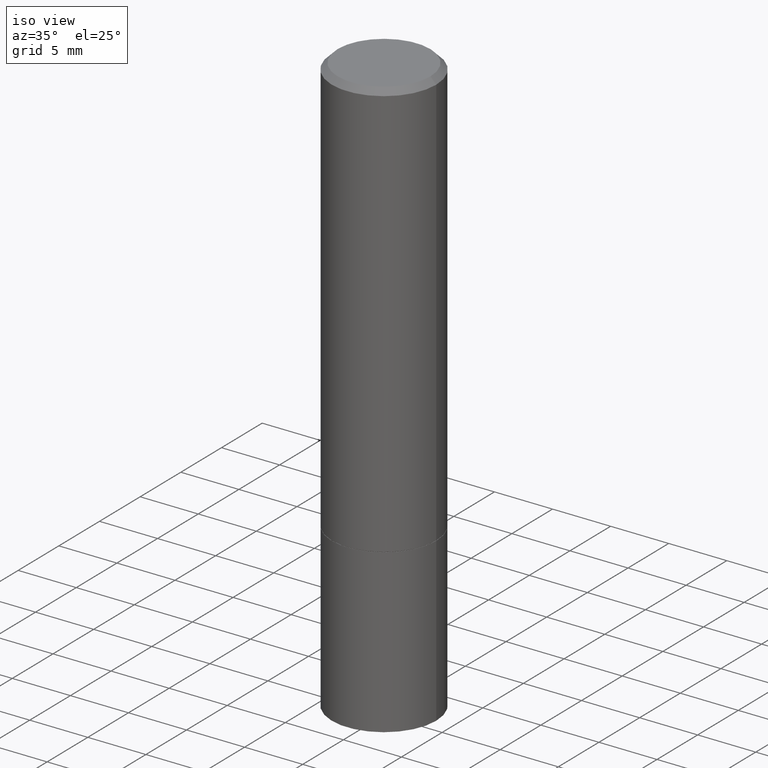
[diagram: clean part render]
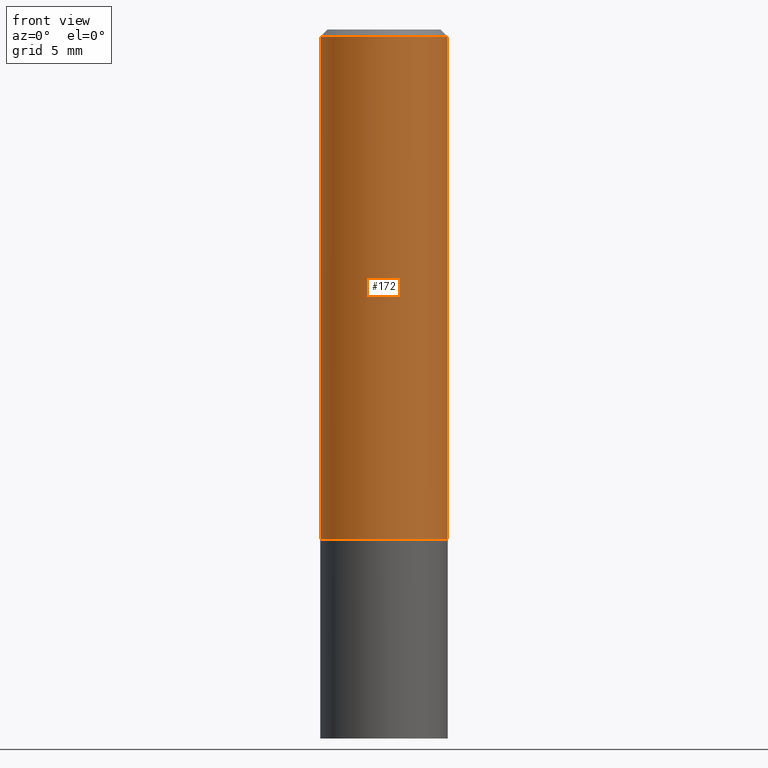
[diagram: tour spotlight — one face highlighted and labeled with its STEP entity id]
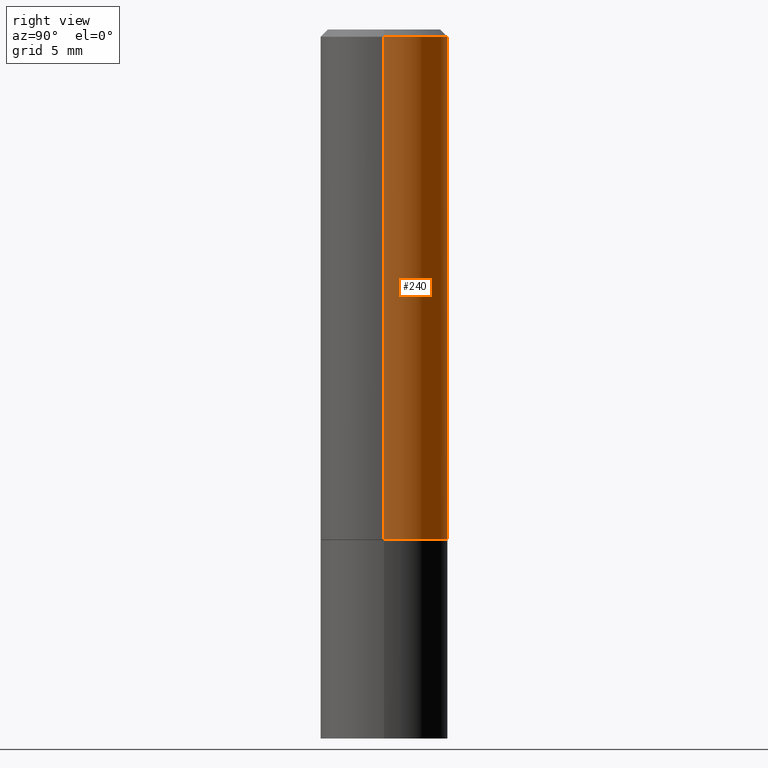
[diagram: tour spotlight — one face highlighted and labeled with its STEP entity id]
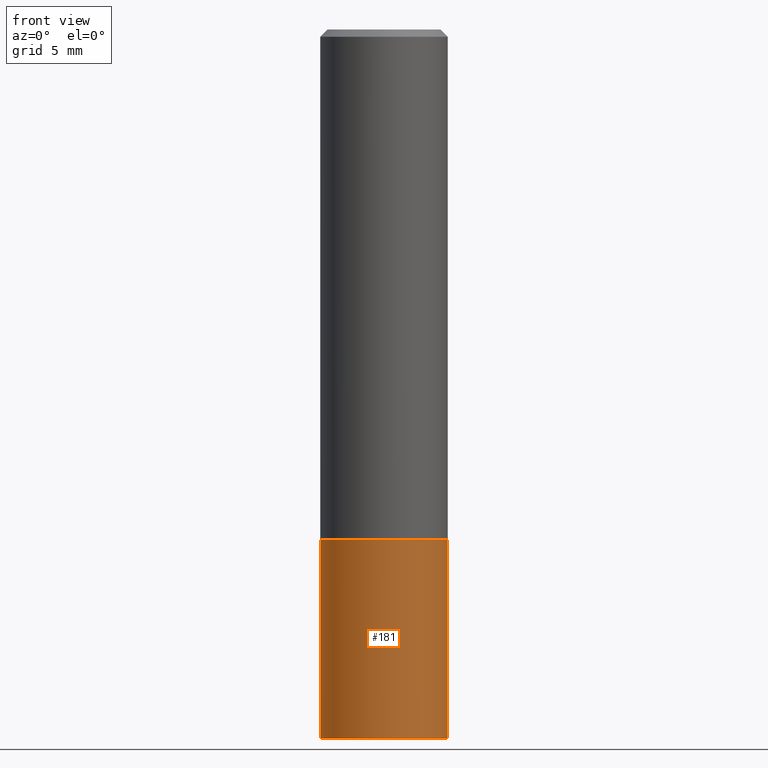
[diagram: tour spotlight — one face highlighted and labeled with its STEP entity id]
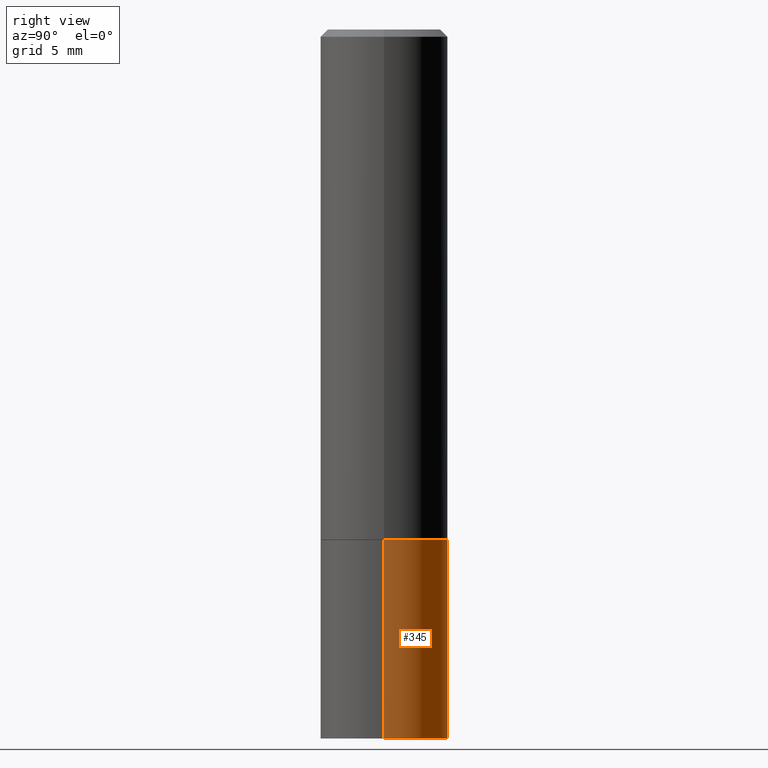
[diagram: tour spotlight — one face highlighted and labeled with its STEP entity id]
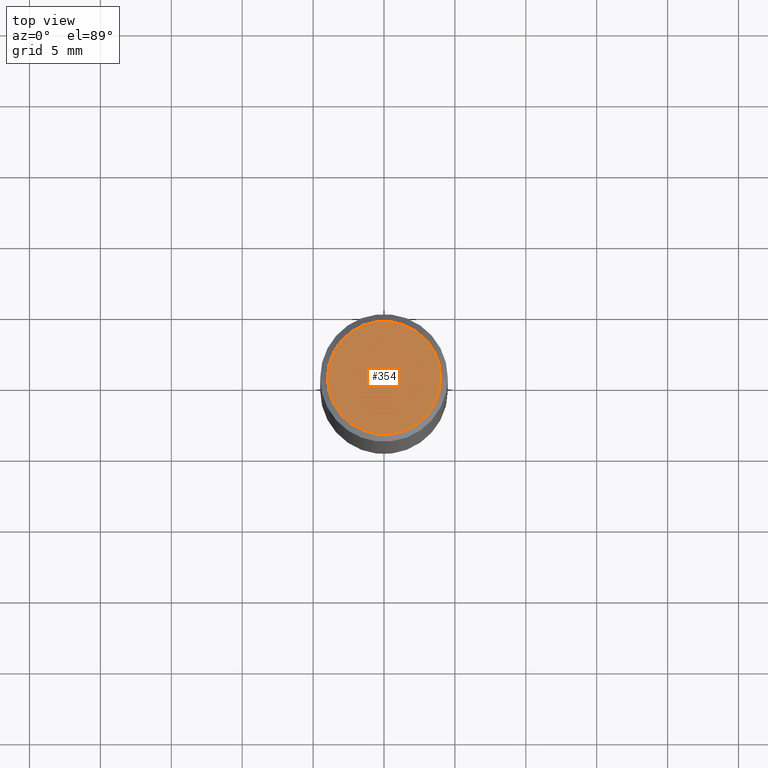
[diagram: tour spotlight — one face highlighted and labeled with its STEP entity id]
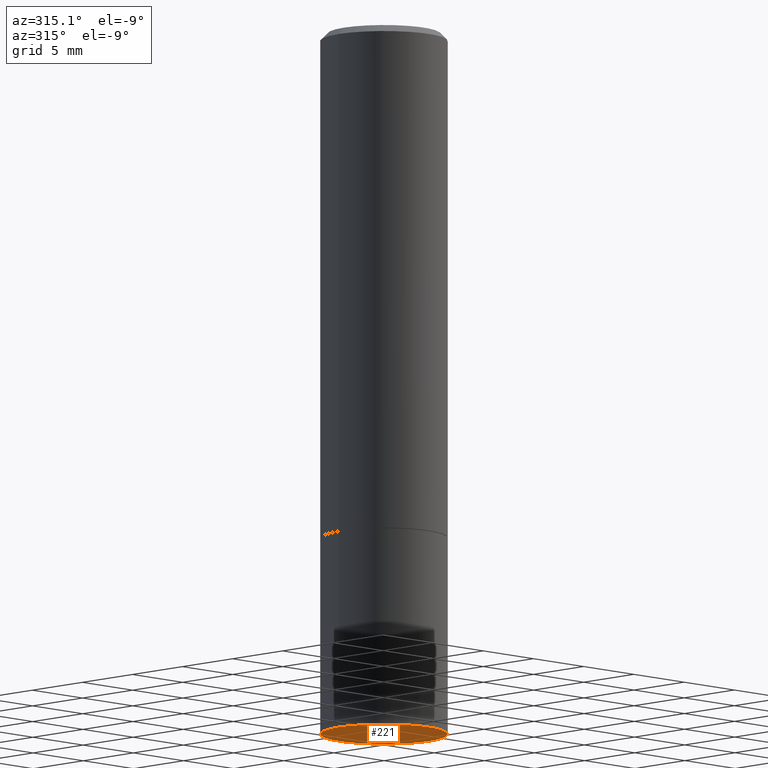
[diagram: tour spotlight — one face highlighted and labeled with its STEP entity id]
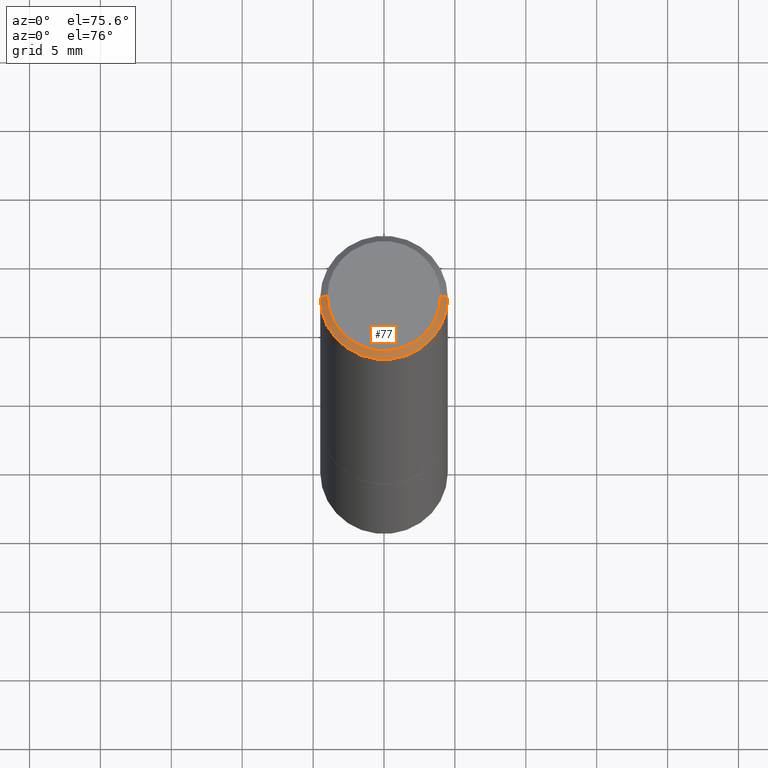
[diagram: tour spotlight — one face highlighted and labeled with its STEP entity id]
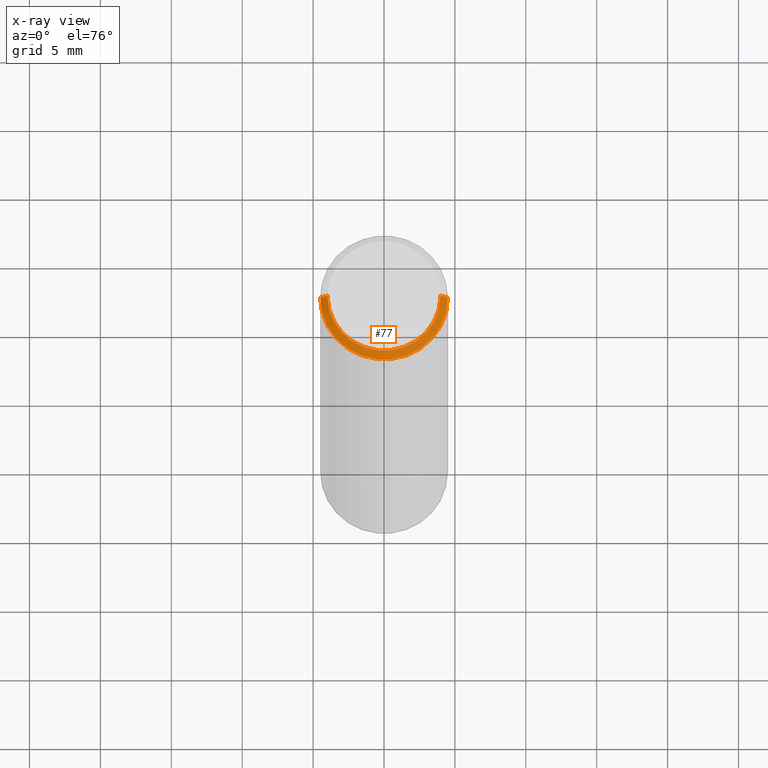
[diagram: x-ray of the same camera — body ghosted, this tour face saturated]
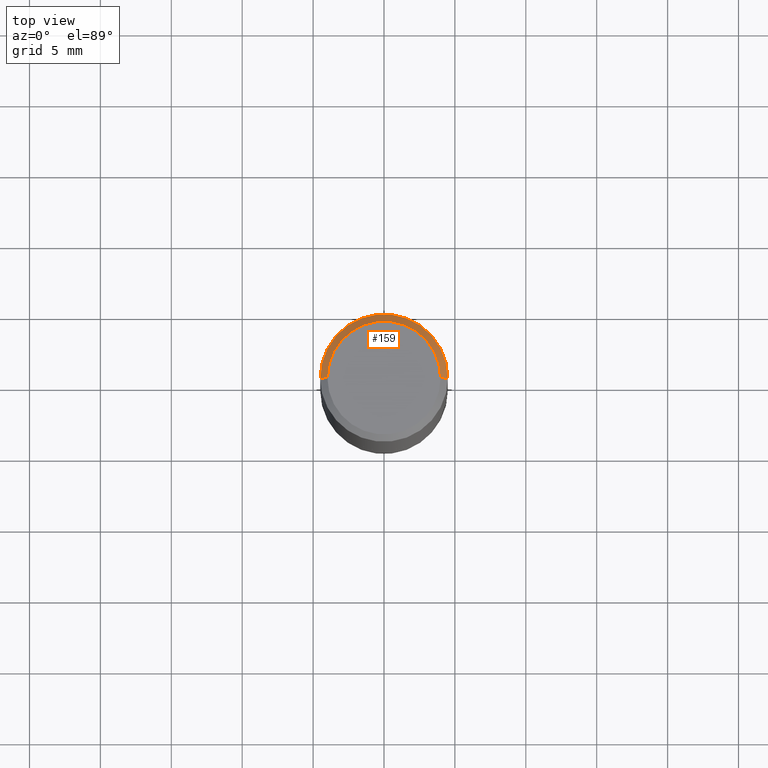
[diagram: tour spotlight — one face highlighted and labeled with its STEP entity id]
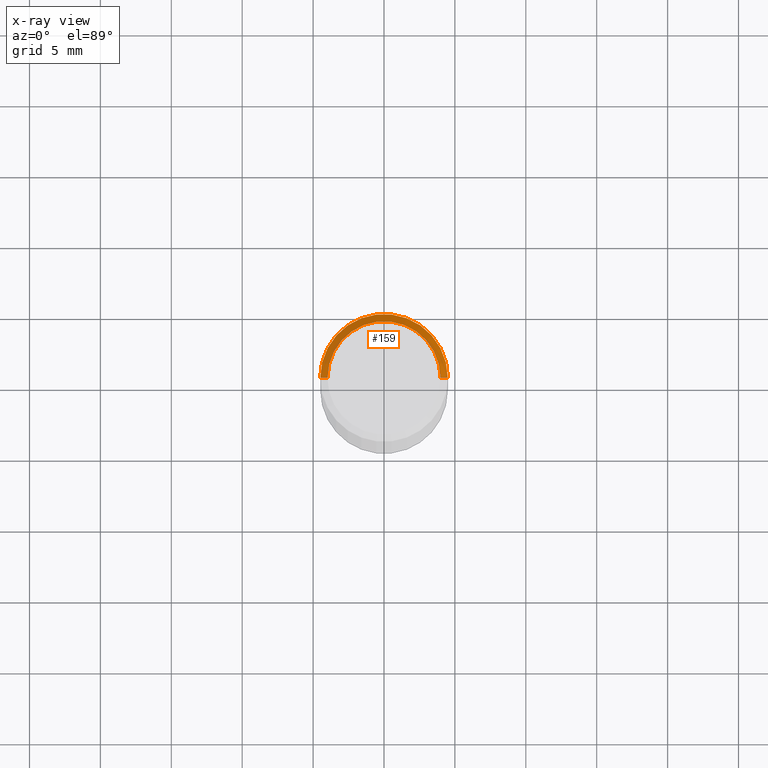
[diagram: x-ray of the same camera — body ghosted, this tour face saturated]
A machine part: a face-by-face anatomy tour. The part has 12 B-rep faces; the first image is the clean iso view, then the 8 largest visible faces are spotlighted one at a time (largest first), each with its STEP entity span.

Face 1 — front view, entity #172. In plain terms, the highlighted cylindrical surface (partial cylindrical patch) has radius 4.4996 mm, axis along (-0, 0, 1).
Definition (entity closure, byte-faithful):
#2 = AXIS2_PLACEMENT_3D ( 'NONE', #68, #262, #7 ) ;
#7 = DIRECTION ( 'NONE',  ( 1.000000000000000000, -6.982962677686266711E-15, 0.000000000000000000 ) ) ;
#11 = EDGE_CURVE ( 'NONE', #143, #229, #151, .T. ) ;
#13 = CARTESIAN_POINT ( 'NONE',  ( -0.1771499999999999186, 1.258726456399016901E-15, -8.713893512386561121E-30 ) ) ;
#15 = DIRECTION ( 'NONE',  ( -2.445468806185136597E-29, 3.491481338843145583E-15, 1.000000000000000000 ) ) ;
#23 = LINE ( 'NONE', #165, #152 ) ;
#33 = ORIENTED_EDGE ( 'NONE', *, *, #11, .F. ) ;
#46 = CARTESIAN_POINT ( 'NONE',  ( 3.463517470200008716E-29, -4.944985020203546646E-15, -1.416299999999999892 ) ) ;
#57 = VERTEX_POINT ( 'NONE', #292 ) ;
#68 = CARTESIAN_POINT ( 'NONE',  ( 4.890937612370283668E-31, -6.982962677686305168E-17, -0.02000000000000004205 ) ) ;
#86 = DIRECTION ( 'NONE',  ( -2.445468806185136597E-29, 3.491481338843145583E-15, 1.000000000000000000 ) ) ;
#98 = ORIENTED_EDGE ( 'NONE', *, *, #287, .F. ) ;
#114 = CYLINDRICAL_SURFACE ( 'NONE', #289, 0.1771499999999999186 ) ;
#132 = DIRECTION ( 'NONE',  ( -2.445468806185136877E-29, 3.491481338843145188E-15, 1.000000000000000000 ) ) ;
#143 = VERTEX_POINT ( 'NONE', #328 ) ;
#151 = CIRCLE ( 'NONE', #2, 0.1771499999999998354 ) ;
#152 = VECTOR ( 'NONE', #364, 39.37007874015748143 ) ;
#162 = DIRECTION ( 'NONE',  ( 1.000000000000000000, -6.982962677686266711E-15, 4.876176775795935232E-29 ) ) ;
#165 = CARTESIAN_POINT ( 'NONE',  ( 0.1771499999999999186, -1.237031838352121605E-15, 8.638147158322495756E-30 ) ) ;
#172 = ADVANCED_FACE ( 'NONE', ( #361 ), #114, .T. ) ;
#179 = ORIENTED_EDGE ( 'NONE', *, *, #305, .T. ) ;
#184 = LINE ( 'NONE', #13, #349 ) ;
#188 = AXIS2_PLACEMENT_3D ( 'NONE', #46, #15, #264 ) ;
#195 = CIRCLE ( 'NONE', #188, 0.1771500000000000019 ) ;
#218 = CARTESIAN_POINT ( 'NONE',  ( 0.000000000000000000, 0.000000000000000000, 0.000000000000000000 ) ) ;
#229 = VERTEX_POINT ( 'NONE', #272 ) ;
#231 = EDGE_CURVE ( 'NONE', #57, #229, #23, .T. ) ;
#251 = ORIENTED_EDGE ( 'NONE', *, *, #231, .T. ) ;
#261 = CARTESIAN_POINT ( 'NONE',  ( -0.1771500000000000019, -1.248680867091185705E-15, -1.416299999999999892 ) ) ;
#262 = DIRECTION ( 'NONE',  ( -2.445468806185136597E-29, 3.491481338843145583E-15, 1.000000000000000000 ) ) ;
#264 = DIRECTION ( 'NONE',  ( 1.000000000000000000, -6.982962677686266711E-15, 0.000000000000000000 ) ) ;
#272 = CARTESIAN_POINT ( 'NONE',  ( 0.1771499999999998354, -1.285166847082088818E-15, -0.02000000000000004205 ) ) ;
#283 = VERTEX_POINT ( 'NONE', #261 ) ;
#285 = EDGE_LOOP ( 'NONE', ( #98, #179, #251, #33 ) ) ;
#287 = EDGE_CURVE ( 'NONE', #283, #143, #184, .T. ) ;
#289 = AXIS2_PLACEMENT_3D ( 'NONE', #218, #86, #162 ) ;
#292 = CARTESIAN_POINT ( 'NONE',  ( 0.1771500000000000019, -6.182016858555669040E-15, -1.416299999999999892 ) ) ;
#305 = EDGE_CURVE ( 'NONE', #283, #57, #195, .T. ) ;
#328 = CARTESIAN_POINT ( 'NONE',  ( -0.1771499999999998354, 1.167202211575257912E-15, -0.02000000000000004205 ) ) ;
#349 = VECTOR ( 'NONE', #132, 39.37007874015748143 ) ;
#361 = FACE_OUTER_BOUND ( 'NONE', #285, .T. ) ;
#364 = DIRECTION ( 'NONE',  ( -2.445468806185136877E-29, 3.491481338843145188E-15, 1.000000000000000000 ) ) ;

Face 2 — right view, entity #240. In plain terms, the highlighted cylindrical surface (partial cylindrical patch) has radius 4.4996 mm, axis along (-0, 0, 1).
Definition (entity closure, byte-faithful):
#4 = ORIENTED_EDGE ( 'NONE', *, *, #314, .F. ) ;
#13 = CARTESIAN_POINT ( 'NONE',  ( -0.1771499999999999186, 1.258726456399016901E-15, -8.713893512386561121E-30 ) ) ;
#23 = LINE ( 'NONE', #165, #152 ) ;
#30 = CIRCLE ( 'NONE', #136, 0.1771499999999998354 ) ;
#38 = AXIS2_PLACEMENT_3D ( 'NONE', #237, #357, #232 ) ;
#53 = ORIENTED_EDGE ( 'NONE', *, *, #231, .F. ) ;
#57 = VERTEX_POINT ( 'NONE', #292 ) ;
#89 = CARTESIAN_POINT ( 'NONE',  ( 0.000000000000000000, 0.000000000000000000, 0.000000000000000000 ) ) ;
#93 = FACE_OUTER_BOUND ( 'NONE', #310, .T. ) ;
#130 = EDGE_CURVE ( 'NONE', #57, #283, #215, .T. ) ;
#132 = DIRECTION ( 'NONE',  ( -2.445468806185136877E-29, 3.491481338843145188E-15, 1.000000000000000000 ) ) ;
#136 = AXIS2_PLACEMENT_3D ( 'NONE', #233, #213, #322 ) ;
#143 = VERTEX_POINT ( 'NONE', #328 ) ;
#152 = VECTOR ( 'NONE', #364, 39.37007874015748143 ) ;
#165 = CARTESIAN_POINT ( 'NONE',  ( 0.1771499999999999186, -1.237031838352121605E-15, 8.638147158322495756E-30 ) ) ;
#184 = LINE ( 'NONE', #13, #349 ) ;
#193 = ORIENTED_EDGE ( 'NONE', *, *, #287, .T. ) ;
#199 = CYLINDRICAL_SURFACE ( 'NONE', #300, 0.1771499999999999186 ) ;
#213 = DIRECTION ( 'NONE',  ( -2.445468806185136597E-29, 3.491481338843145583E-15, 1.000000000000000000 ) ) ;
#215 = CIRCLE ( 'NONE', #38, 0.1771500000000000019 ) ;
#229 = VERTEX_POINT ( 'NONE', #272 ) ;
#231 = EDGE_CURVE ( 'NONE', #57, #229, #23, .T. ) ;
#232 = DIRECTION ( 'NONE',  ( 1.000000000000000000, -6.982962677686266711E-15, 0.000000000000000000 ) ) ;
#233 = CARTESIAN_POINT ( 'NONE',  ( 4.890937612370283668E-31, -6.982962677686305168E-17, -0.02000000000000004205 ) ) ;
#237 = CARTESIAN_POINT ( 'NONE',  ( 3.463517470200008716E-29, -4.944985020203546646E-15, -1.416299999999999892 ) ) ;
#240 = ADVANCED_FACE ( 'NONE', ( #93 ), #199, .T. ) ;
#249 = ORIENTED_EDGE ( 'NONE', *, *, #130, .T. ) ;
#261 = CARTESIAN_POINT ( 'NONE',  ( -0.1771500000000000019, -1.248680867091185705E-15, -1.416299999999999892 ) ) ;
#272 = CARTESIAN_POINT ( 'NONE',  ( 0.1771499999999998354, -1.285166847082088818E-15, -0.02000000000000004205 ) ) ;
#277 = DIRECTION ( 'NONE',  ( 1.000000000000000000, -6.982962677686266711E-15, 4.876176775795935232E-29 ) ) ;
#283 = VERTEX_POINT ( 'NONE', #261 ) ;
#287 = EDGE_CURVE ( 'NONE', #283, #143, #184, .T. ) ;
#292 = CARTESIAN_POINT ( 'NONE',  ( 0.1771500000000000019, -6.182016858555669040E-15, -1.416299999999999892 ) ) ;
#300 = AXIS2_PLACEMENT_3D ( 'NONE', #89, #333, #277 ) ;
#310 = EDGE_LOOP ( 'NONE', ( #249, #193, #4, #53 ) ) ;
#314 = EDGE_CURVE ( 'NONE', #229, #143, #30, .T. ) ;
#322 = DIRECTION ( 'NONE',  ( 1.000000000000000000, -6.982962677686266711E-15, 0.000000000000000000 ) ) ;
#328 = CARTESIAN_POINT ( 'NONE',  ( -0.1771499999999998354, 1.167202211575257912E-15, -0.02000000000000004205 ) ) ;
#333 = DIRECTION ( 'NONE',  ( -2.445468806185136597E-29, 3.491481338843145583E-15, 1.000000000000000000 ) ) ;
#349 = VECTOR ( 'NONE', #132, 39.37007874015748143 ) ;
#357 = DIRECTION ( 'NONE',  ( -2.445468806185136597E-29, 3.491481338843145583E-15, 1.000000000000000000 ) ) ;
#364 = DIRECTION ( 'NONE',  ( -2.445468806185136877E-29, 3.491481338843145188E-15, 1.000000000000000000 ) ) ;

Face 3 — front view, entity #181. In plain terms, the highlighted cylindrical surface (partial cylindrical patch) has radius 4.4996 mm, axis along (-0, 0, 1).
Definition (entity closure, byte-faithful):
#14 = FACE_OUTER_BOUND ( 'NONE', #281, .T. ) ;
#19 = AXIS2_PLACEMENT_3D ( 'NONE', #97, #242, #117 ) ;
#24 = EDGE_CURVE ( 'NONE', #295, #146, #95, .T. ) ;
#27 = DIRECTION ( 'NONE',  ( 1.000000000000000000, -6.982962677686266711E-15, 0.000000000000000000 ) ) ;
#35 = ORIENTED_EDGE ( 'NONE', *, *, #24, .T. ) ;
#50 = DIRECTION ( 'NONE',  ( -2.445468806185136877E-29, 3.491481338843145188E-15, 1.000000000000000000 ) ) ;
#64 = ORIENTED_EDGE ( 'NONE', *, *, #318, .F. ) ;
#78 = DIRECTION ( 'NONE',  ( -2.445468806185136597E-29, 3.491481338843145583E-15, 1.000000000000000000 ) ) ;
#84 = VERTEX_POINT ( 'NONE', #239 ) ;
#95 = LINE ( 'NONE', #286, #167 ) ;
#97 = CARTESIAN_POINT ( 'NONE',  ( 3.465962939006193759E-29, -4.948476501542390442E-15, -1.417300000000000004 ) ) ;
#106 = CARTESIAN_POINT ( 'NONE',  ( 0.1771500000000000019, -6.185508339894512836E-15, -1.417300000000000004 ) ) ;
#110 = LINE ( 'NONE', #294, #356 ) ;
#117 = DIRECTION ( 'NONE',  ( 1.000000000000000000, -6.982962677686266711E-15, 0.000000000000000000 ) ) ;
#125 = DIRECTION ( 'NONE',  ( -2.445468806185136877E-29, 3.491481338843145188E-15, 1.000000000000000000 ) ) ;
#133 = CYLINDRICAL_SURFACE ( 'NONE', #248, 0.1771500000000000019 ) ;
#145 = CARTESIAN_POINT ( 'NONE',  ( -0.1771500000000000019, -4.652002302128544174E-15, -1.968500000000000139 ) ) ;
#146 = VERTEX_POINT ( 'NONE', #106 ) ;
#167 = VECTOR ( 'NONE', #125, 39.37007874015748143 ) ;
#175 = ORIENTED_EDGE ( 'NONE', *, *, #247, .T. ) ;
#181 = ADVANCED_FACE ( 'NONE', ( #14 ), #133, .T. ) ;
#197 = CIRCLE ( 'NONE', #19, 0.1771500000000000019 ) ;
#239 = CARTESIAN_POINT ( 'NONE',  ( -0.1771500000000000019, -4.652002302128544174E-15, -1.417300000000000004 ) ) ;
#242 = DIRECTION ( 'NONE',  ( -2.445468806185136597E-29, 3.491481338843145583E-15, 1.000000000000000000 ) ) ;
#247 = EDGE_CURVE ( 'NONE', #334, #295, #255, .T. ) ;
#248 = AXIS2_PLACEMENT_3D ( 'NONE', #320, #78, #293 ) ;
#255 = CIRCLE ( 'NONE', #266, 0.1771500000000000019 ) ;
#266 = AXIS2_PLACEMENT_3D ( 'NONE', #303, #280, #27 ) ;
#280 = DIRECTION ( 'NONE',  ( -2.445468806185136597E-29, 3.491481338843145583E-15, 1.000000000000000000 ) ) ;
#281 = EDGE_LOOP ( 'NONE', ( #64, #175, #35, #339 ) ) ;
#286 = CARTESIAN_POINT ( 'NONE',  ( 0.1771500000000000019, -1.237031838352122197E-15, 8.638147158322499960E-30 ) ) ;
#293 = DIRECTION ( 'NONE',  ( 1.000000000000000000, -6.982962677686266711E-15, 4.876176775795935793E-29 ) ) ;
#294 = CARTESIAN_POINT ( 'NONE',  ( -0.1771500000000000019, 1.258726456399017493E-15, -8.713893512386565325E-30 ) ) ;
#295 = VERTEX_POINT ( 'NONE', #352 ) ;
#303 = CARTESIAN_POINT ( 'NONE',  ( 4.813905344975441835E-29, -6.872981015512731707E-15, -1.968500000000000139 ) ) ;
#318 = EDGE_CURVE ( 'NONE', #334, #84, #110, .T. ) ;
#320 = CARTESIAN_POINT ( 'NONE',  ( 0.000000000000000000, 0.000000000000000000, 0.000000000000000000 ) ) ;
#332 = EDGE_CURVE ( 'NONE', #84, #146, #197, .T. ) ;
#334 = VERTEX_POINT ( 'NONE', #145 ) ;
#339 = ORIENTED_EDGE ( 'NONE', *, *, #332, .F. ) ;
#352 = CARTESIAN_POINT ( 'NONE',  ( 0.1771500000000000019, -8.110012853864854101E-15, -1.968500000000000139 ) ) ;
#356 = VECTOR ( 'NONE', #50, 39.37007874015748143 ) ;

Face 4 — right view, entity #345. In plain terms, the highlighted cylindrical surface (partial cylindrical patch) has radius 4.4996 mm, axis along (-0, 0, 1).
Definition (entity closure, byte-faithful):
#6 = ORIENTED_EDGE ( 'NONE', *, *, #24, .F. ) ;
#24 = EDGE_CURVE ( 'NONE', #295, #146, #95, .T. ) ;
#26 = CARTESIAN_POINT ( 'NONE',  ( 0.000000000000000000, 0.000000000000000000, 0.000000000000000000 ) ) ;
#40 = EDGE_CURVE ( 'NONE', #295, #334, #275, .T. ) ;
#43 = EDGE_CURVE ( 'NONE', #146, #84, #52, .T. ) ;
#50 = DIRECTION ( 'NONE',  ( -2.445468806185136877E-29, 3.491481338843145188E-15, 1.000000000000000000 ) ) ;
#52 = CIRCLE ( 'NONE', #268, 0.1771500000000000019 ) ;
#71 = DIRECTION ( 'NONE',  ( 1.000000000000000000, -6.982962677686266711E-15, 0.000000000000000000 ) ) ;
#84 = VERTEX_POINT ( 'NONE', #239 ) ;
#94 = AXIS2_PLACEMENT_3D ( 'NONE', #346, #127, #348 ) ;
#95 = LINE ( 'NONE', #286, #167 ) ;
#103 = CARTESIAN_POINT ( 'NONE',  ( 3.465962939006193759E-29, -4.948476501542390442E-15, -1.417300000000000004 ) ) ;
#106 = CARTESIAN_POINT ( 'NONE',  ( 0.1771500000000000019, -6.185508339894512836E-15, -1.417300000000000004 ) ) ;
#110 = LINE ( 'NONE', #294, #356 ) ;
#120 = DIRECTION ( 'NONE',  ( -2.445468806185136597E-29, 3.491481338843145583E-15, 1.000000000000000000 ) ) ;
#122 = ORIENTED_EDGE ( 'NONE', *, *, #40, .T. ) ;
#125 = DIRECTION ( 'NONE',  ( -2.445468806185136877E-29, 3.491481338843145188E-15, 1.000000000000000000 ) ) ;
#127 = DIRECTION ( 'NONE',  ( -2.445468806185136597E-29, 3.491481338843145583E-15, 1.000000000000000000 ) ) ;
#145 = CARTESIAN_POINT ( 'NONE',  ( -0.1771500000000000019, -4.652002302128544174E-15, -1.968500000000000139 ) ) ;
#146 = VERTEX_POINT ( 'NONE', #106 ) ;
#163 = ORIENTED_EDGE ( 'NONE', *, *, #43, .F. ) ;
#167 = VECTOR ( 'NONE', #125, 39.37007874015748143 ) ;
#169 = DIRECTION ( 'NONE',  ( 1.000000000000000000, -6.982962677686266711E-15, 4.876176775795935793E-29 ) ) ;
#205 = ORIENTED_EDGE ( 'NONE', *, *, #318, .T. ) ;
#208 = DIRECTION ( 'NONE',  ( -2.445468806185136597E-29, 3.491481338843145583E-15, 1.000000000000000000 ) ) ;
#223 = EDGE_LOOP ( 'NONE', ( #122, #205, #163, #6 ) ) ;
#239 = CARTESIAN_POINT ( 'NONE',  ( -0.1771500000000000019, -4.652002302128544174E-15, -1.417300000000000004 ) ) ;
#268 = AXIS2_PLACEMENT_3D ( 'NONE', #103, #208, #71 ) ;
#275 = CIRCLE ( 'NONE', #94, 0.1771500000000000019 ) ;
#286 = CARTESIAN_POINT ( 'NONE',  ( 0.1771500000000000019, -1.237031838352122197E-15, 8.638147158322499960E-30 ) ) ;
#294 = CARTESIAN_POINT ( 'NONE',  ( -0.1771500000000000019, 1.258726456399017493E-15, -8.713893512386565325E-30 ) ) ;
#295 = VERTEX_POINT ( 'NONE', #352 ) ;
#297 = CYLINDRICAL_SURFACE ( 'NONE', #317, 0.1771500000000000019 ) ;
#317 = AXIS2_PLACEMENT_3D ( 'NONE', #26, #120, #169 ) ;
#318 = EDGE_CURVE ( 'NONE', #334, #84, #110, .T. ) ;
#334 = VERTEX_POINT ( 'NONE', #145 ) ;
#345 = ADVANCED_FACE ( 'NONE', ( #363 ), #297, .T. ) ;
#346 = CARTESIAN_POINT ( 'NONE',  ( 4.813905344975441835E-29, -6.872981015512731707E-15, -1.968500000000000139 ) ) ;
#348 = DIRECTION ( 'NONE',  ( 1.000000000000000000, -6.982962677686266711E-15, 0.000000000000000000 ) ) ;
#352 = CARTESIAN_POINT ( 'NONE',  ( 0.1771500000000000019, -8.110012853864854101E-15, -1.968500000000000139 ) ) ;
#356 = VECTOR ( 'NONE', #50, 39.37007874015748143 ) ;
#363 = FACE_OUTER_BOUND ( 'NONE', #223, .T. ) ;

Face 5 — top view, entity #354. In plain terms, the highlighted planar face has unit normal (0, -0, -1).
Definition (entity closure, byte-faithful):
#1 = DIRECTION ( 'NONE',  ( -1.000000000000000000, 6.982962677686265922E-15, -4.876176775795935793E-29 ) ) ;
#28 = VERTEX_POINT ( 'NONE', #228 ) ;
#31 = ORIENTED_EDGE ( 'NONE', *, *, #209, .T. ) ;
#55 = FACE_OUTER_BOUND ( 'NONE', #160, .T. ) ;
#72 = EDGE_CURVE ( 'NONE', #256, #28, #126, .T. ) ;
#88 = PLANE ( 'NONE',  #222 ) ;
#107 = DIRECTION ( 'NONE',  ( -2.445468806185136597E-29, 3.491481338843145583E-15, 1.000000000000000000 ) ) ;
#121 = CIRCLE ( 'NONE', #235, 0.1571499999999998454 ) ;
#126 = CIRCLE ( 'NONE', #290, 0.1571499999999998454 ) ;
#134 = CARTESIAN_POINT ( 'NONE',  ( 0.000000000000000000, 0.000000000000000000, 0.000000000000000000 ) ) ;
#138 = DIRECTION ( 'NONE',  ( 2.438088387897960049E-29, -3.491481338843145188E-15, -1.000000000000000000 ) ) ;
#155 = ORIENTED_EDGE ( 'NONE', *, *, #72, .T. ) ;
#160 = EDGE_LOOP ( 'NONE', ( #155, #31 ) ) ;
#182 = DIRECTION ( 'NONE',  ( 1.000000000000000000, -6.982962677686267499E-15, 4.876176775795935793E-29 ) ) ;
#209 = EDGE_CURVE ( 'NONE', #28, #256, #121, .T. ) ;
#222 = AXIS2_PLACEMENT_3D ( 'NONE', #271, #138, #1 ) ;
#228 = CARTESIAN_POINT ( 'NONE',  ( 0.1571499999999998454, -1.181647053715941838E-15, 7.968752866068134566E-30 ) ) ;
#234 = DIRECTION ( 'NONE',  ( -2.445468806185136597E-29, 3.491481338843145583E-15, 1.000000000000000000 ) ) ;
#235 = AXIS2_PLACEMENT_3D ( 'NONE', #134, #234, #355 ) ;
#246 = CARTESIAN_POINT ( 'NONE',  ( -0.1571499999999998454, 1.132287398186826855E-15, -7.796414549896502556E-30 ) ) ;
#256 = VERTEX_POINT ( 'NONE', #246 ) ;
#263 = CARTESIAN_POINT ( 'NONE',  ( 0.000000000000000000, 0.000000000000000000, 0.000000000000000000 ) ) ;
#271 = CARTESIAN_POINT ( 'NONE',  ( 1.097372584798395600E-15, 0.1571499999999998454, -5.486862923991998709E-16 ) ) ;
#290 = AXIS2_PLACEMENT_3D ( 'NONE', #263, #107, #182 ) ;
#354 = ADVANCED_FACE ( 'NONE', ( #55 ), #88, .F. ) ;
#355 = DIRECTION ( 'NONE',  ( 1.000000000000000000, -6.982962677686267499E-15, 4.876176775795935793E-29 ) ) ;

Face 6 — auxiliary view, entity #221. In plain terms, the highlighted planar face has unit normal (0, -0, -1).
Definition (entity closure, byte-faithful):
#8 = ORIENTED_EDGE ( 'NONE', *, *, #40, .F. ) ;
#27 = DIRECTION ( 'NONE',  ( 1.000000000000000000, -6.982962677686266711E-15, 0.000000000000000000 ) ) ;
#40 = EDGE_CURVE ( 'NONE', #295, #334, #275, .T. ) ;
#81 = FACE_OUTER_BOUND ( 'NONE', #177, .T. ) ;
#94 = AXIS2_PLACEMENT_3D ( 'NONE', #346, #127, #348 ) ;
#109 = AXIS2_PLACEMENT_3D ( 'NONE', #192, #335, #168 ) ;
#127 = DIRECTION ( 'NONE',  ( -2.445468806185136597E-29, 3.491481338843145583E-15, 1.000000000000000000 ) ) ;
#145 = CARTESIAN_POINT ( 'NONE',  ( -0.1771500000000000019, -4.652002302128544174E-15, -1.968500000000000139 ) ) ;
#168 = DIRECTION ( 'NONE',  ( -1.000000000000000000, 6.982962677686265922E-15, -4.876176775795935793E-29 ) ) ;
#177 = EDGE_LOOP ( 'NONE', ( #8, #207 ) ) ;
#183 = PLANE ( 'NONE',  #109 ) ;
#192 = CARTESIAN_POINT ( 'NONE',  ( 1.237031838352170120E-15, 0.1771499999999931463, -1.968500000000000583 ) ) ;
#207 = ORIENTED_EDGE ( 'NONE', *, *, #247, .F. ) ;
#221 = ADVANCED_FACE ( 'NONE', ( #81 ), #183, .T. ) ;
#247 = EDGE_CURVE ( 'NONE', #334, #295, #255, .T. ) ;
#255 = CIRCLE ( 'NONE', #266, 0.1771500000000000019 ) ;
#266 = AXIS2_PLACEMENT_3D ( 'NONE', #303, #280, #27 ) ;
#275 = CIRCLE ( 'NONE', #94, 0.1771500000000000019 ) ;
#280 = DIRECTION ( 'NONE',  ( -2.445468806185136597E-29, 3.491481338843145583E-15, 1.000000000000000000 ) ) ;
#295 = VERTEX_POINT ( 'NONE', #352 ) ;
#303 = CARTESIAN_POINT ( 'NONE',  ( 4.813905344975441835E-29, -6.872981015512731707E-15, -1.968500000000000139 ) ) ;
#334 = VERTEX_POINT ( 'NONE', #145 ) ;
#335 = DIRECTION ( 'NONE',  ( 2.438088387897960049E-29, -3.491481338843145188E-15, -1.000000000000000000 ) ) ;
#346 = CARTESIAN_POINT ( 'NONE',  ( 4.813905344975441835E-29, -6.872981015512731707E-15, -1.968500000000000139 ) ) ;
#348 = DIRECTION ( 'NONE',  ( 1.000000000000000000, -6.982962677686266711E-15, 0.000000000000000000 ) ) ;
#352 = CARTESIAN_POINT ( 'NONE',  ( 0.1771500000000000019, -8.110012853864854101E-15, -1.968500000000000139 ) ) ;

Face 7 — auxiliary view, entity #77. An x-ray twin of the same camera follows (body ghosted, this face saturated) — the face is partly hidden behind the body. In plain terms, the highlighted conical surface has half-angle 45 deg.
Definition (entity closure, byte-faithful):
#2 = AXIS2_PLACEMENT_3D ( 'NONE', #68, #262, #7 ) ;
#7 = DIRECTION ( 'NONE',  ( 1.000000000000000000, -6.982962677686266711E-15, 0.000000000000000000 ) ) ;
#11 = EDGE_CURVE ( 'NONE', #143, #229, #151, .T. ) ;
#16 = DIRECTION ( 'NONE',  ( 0.7071067811865466846, -7.319954787623252890E-15, -0.7071067811865483499 ) ) ;
#28 = VERTEX_POINT ( 'NONE', #228 ) ;
#47 = LINE ( 'NONE', #156, #76 ) ;
#68 = CARTESIAN_POINT ( 'NONE',  ( 4.890937612370283668E-31, -6.982962677686305168E-17, -0.02000000000000004205 ) ) ;
#72 = EDGE_CURVE ( 'NONE', #256, #28, #126, .T. ) ;
#76 = VECTOR ( 'NONE', #16, 39.37007874015748143 ) ;
#77 = ADVANCED_FACE ( 'NONE', ( #296 ), #137, .T. ) ;
#107 = DIRECTION ( 'NONE',  ( -2.445468806185136597E-29, 3.491481338843145583E-15, 1.000000000000000000 ) ) ;
#126 = CIRCLE ( 'NONE', #290, 0.1571499999999998454 ) ;
#137 = CONICAL_SURFACE ( 'NONE', #212, 0.1771499999999998354, 0.7853981633974471688 ) ;
#143 = VERTEX_POINT ( 'NONE', #328 ) ;
#144 = VECTOR ( 'NONE', #358, 39.37007874015748143 ) ;
#151 = CIRCLE ( 'NONE', #2, 0.1771499999999998354 ) ;
#156 = CARTESIAN_POINT ( 'NONE',  ( 0.1771499999999998354, -1.285166847082088818E-15, -0.02000000000000004205 ) ) ;
#176 = LINE ( 'NONE', #206, #144 ) ;
#182 = DIRECTION ( 'NONE',  ( 1.000000000000000000, -6.982962677686267499E-15, 4.876176775795935793E-29 ) ) ;
#185 = CARTESIAN_POINT ( 'NONE',  ( 4.890937612370283668E-31, -6.982962677686305168E-17, -0.02000000000000004205 ) ) ;
#186 = EDGE_CURVE ( 'NONE', #28, #229, #47, .T. ) ;
#187 = DIRECTION ( 'NONE',  ( 2.445468806185136597E-29, -3.491481338843145583E-15, -1.000000000000000000 ) ) ;
#201 = ORIENTED_EDGE ( 'NONE', *, *, #186, .F. ) ;
#206 = CARTESIAN_POINT ( 'NONE',  ( -0.1771499999999998354, 1.167202211575257912E-15, -0.02000000000000004205 ) ) ;
#212 = AXIS2_PLACEMENT_3D ( 'NONE', #185, #187, #324 ) ;
#225 = EDGE_LOOP ( 'NONE', ( #201, #315, #298, #227 ) ) ;
#227 = ORIENTED_EDGE ( 'NONE', *, *, #11, .T. ) ;
#228 = CARTESIAN_POINT ( 'NONE',  ( 0.1571499999999998454, -1.181647053715941838E-15, 7.968752866068134566E-30 ) ) ;
#229 = VERTEX_POINT ( 'NONE', #272 ) ;
#246 = CARTESIAN_POINT ( 'NONE',  ( -0.1571499999999998454, 1.132287398186826855E-15, -7.796414549896502556E-30 ) ) ;
#256 = VERTEX_POINT ( 'NONE', #246 ) ;
#262 = DIRECTION ( 'NONE',  ( -2.445468806185136597E-29, 3.491481338843145583E-15, 1.000000000000000000 ) ) ;
#263 = CARTESIAN_POINT ( 'NONE',  ( 0.000000000000000000, 0.000000000000000000, 0.000000000000000000 ) ) ;
#272 = CARTESIAN_POINT ( 'NONE',  ( 0.1771499999999998354, -1.285166847082088818E-15, -0.02000000000000004205 ) ) ;
#279 = EDGE_CURVE ( 'NONE', #256, #143, #176, .T. ) ;
#290 = AXIS2_PLACEMENT_3D ( 'NONE', #263, #107, #182 ) ;
#296 = FACE_OUTER_BOUND ( 'NONE', #225, .T. ) ;
#298 = ORIENTED_EDGE ( 'NONE', *, *, #279, .T. ) ;
#315 = ORIENTED_EDGE ( 'NONE', *, *, #72, .F. ) ;
#324 = DIRECTION ( 'NONE',  ( -1.000000000000000000, 6.982962677686266711E-15, 0.000000000000000000 ) ) ;
#328 = CARTESIAN_POINT ( 'NONE',  ( -0.1771499999999998354, 1.167202211575257912E-15, -0.02000000000000004205 ) ) ;
#358 = DIRECTION ( 'NONE',  ( -0.7071067811865466846, 2.468850131082247989E-15, -0.7071067811865483499 ) ) ;

Face 8 — top view, entity #159. An x-ray twin of the same camera follows (body ghosted, this face saturated) — the face is partly hidden behind the body. In plain terms, the highlighted conical surface has half-angle 45 deg.
Definition (entity closure, byte-faithful):
#16 = DIRECTION ( 'NONE',  ( 0.7071067811865466846, -7.319954787623252890E-15, -0.7071067811865483499 ) ) ;
#20 = DIRECTION ( 'NONE',  ( 2.445468806185136597E-29, -3.491481338843145583E-15, -1.000000000000000000 ) ) ;
#28 = VERTEX_POINT ( 'NONE', #228 ) ;
#30 = CIRCLE ( 'NONE', #136, 0.1771499999999998354 ) ;
#47 = LINE ( 'NONE', #156, #76 ) ;
#76 = VECTOR ( 'NONE', #16, 39.37007874015748143 ) ;
#82 = FACE_OUTER_BOUND ( 'NONE', #253, .T. ) ;
#83 = CARTESIAN_POINT ( 'NONE',  ( 4.890937612370283668E-31, -6.982962677686305168E-17, -0.02000000000000004205 ) ) ;
#121 = CIRCLE ( 'NONE', #235, 0.1571499999999998454 ) ;
#134 = CARTESIAN_POINT ( 'NONE',  ( 0.000000000000000000, 0.000000000000000000, 0.000000000000000000 ) ) ;
#136 = AXIS2_PLACEMENT_3D ( 'NONE', #233, #213, #322 ) ;
#143 = VERTEX_POINT ( 'NONE', #328 ) ;
#144 = VECTOR ( 'NONE', #358, 39.37007874015748143 ) ;
#148 = ORIENTED_EDGE ( 'NONE', *, *, #186, .T. ) ;
#156 = CARTESIAN_POINT ( 'NONE',  ( 0.1771499999999998354, -1.285166847082088818E-15, -0.02000000000000004205 ) ) ;
#159 = ADVANCED_FACE ( 'NONE', ( #82 ), #323, .T. ) ;
#170 = ORIENTED_EDGE ( 'NONE', *, *, #314, .T. ) ;
#176 = LINE ( 'NONE', #206, #144 ) ;
#186 = EDGE_CURVE ( 'NONE', #28, #229, #47, .T. ) ;
#206 = CARTESIAN_POINT ( 'NONE',  ( -0.1771499999999998354, 1.167202211575257912E-15, -0.02000000000000004205 ) ) ;
#209 = EDGE_CURVE ( 'NONE', #28, #256, #121, .T. ) ;
#213 = DIRECTION ( 'NONE',  ( -2.445468806185136597E-29, 3.491481338843145583E-15, 1.000000000000000000 ) ) ;
#228 = CARTESIAN_POINT ( 'NONE',  ( 0.1571499999999998454, -1.181647053715941838E-15, 7.968752866068134566E-30 ) ) ;
#229 = VERTEX_POINT ( 'NONE', #272 ) ;
#233 = CARTESIAN_POINT ( 'NONE',  ( 4.890937612370283668E-31, -6.982962677686305168E-17, -0.02000000000000004205 ) ) ;
#234 = DIRECTION ( 'NONE',  ( -2.445468806185136597E-29, 3.491481338843145583E-15, 1.000000000000000000 ) ) ;
#235 = AXIS2_PLACEMENT_3D ( 'NONE', #134, #234, #355 ) ;
#246 = CARTESIAN_POINT ( 'NONE',  ( -0.1571499999999998454, 1.132287398186826855E-15, -7.796414549896502556E-30 ) ) ;
#253 = EDGE_LOOP ( 'NONE', ( #270, #148, #170, #344 ) ) ;
#256 = VERTEX_POINT ( 'NONE', #246 ) ;
#270 = ORIENTED_EDGE ( 'NONE', *, *, #209, .F. ) ;
#272 = CARTESIAN_POINT ( 'NONE',  ( 0.1771499999999998354, -1.285166847082088818E-15, -0.02000000000000004205 ) ) ;
#279 = EDGE_CURVE ( 'NONE', #256, #143, #176, .T. ) ;
#314 = EDGE_CURVE ( 'NONE', #229, #143, #30, .T. ) ;
#322 = DIRECTION ( 'NONE',  ( 1.000000000000000000, -6.982962677686266711E-15, 0.000000000000000000 ) ) ;
#323 = CONICAL_SURFACE ( 'NONE', #337, 0.1771499999999998354, 0.7853981633974471688 ) ;
#328 = CARTESIAN_POINT ( 'NONE',  ( -0.1771499999999998354, 1.167202211575257912E-15, -0.02000000000000004205 ) ) ;
#337 = AXIS2_PLACEMENT_3D ( 'NONE', #83, #20, #353 ) ;
#344 = ORIENTED_EDGE ( 'NONE', *, *, #279, .F. ) ;
#353 = DIRECTION ( 'NONE',  ( -1.000000000000000000, 6.982962677686266711E-15, 0.000000000000000000 ) ) ;
#355 = DIRECTION ( 'NONE',  ( 1.000000000000000000, -6.982962677686267499E-15, 4.876176775795935793E-29 ) ) ;
#358 = DIRECTION ( 'NONE',  ( -0.7071067811865466846, 2.468850131082247989E-15, -0.7071067811865483499 ) ) ;